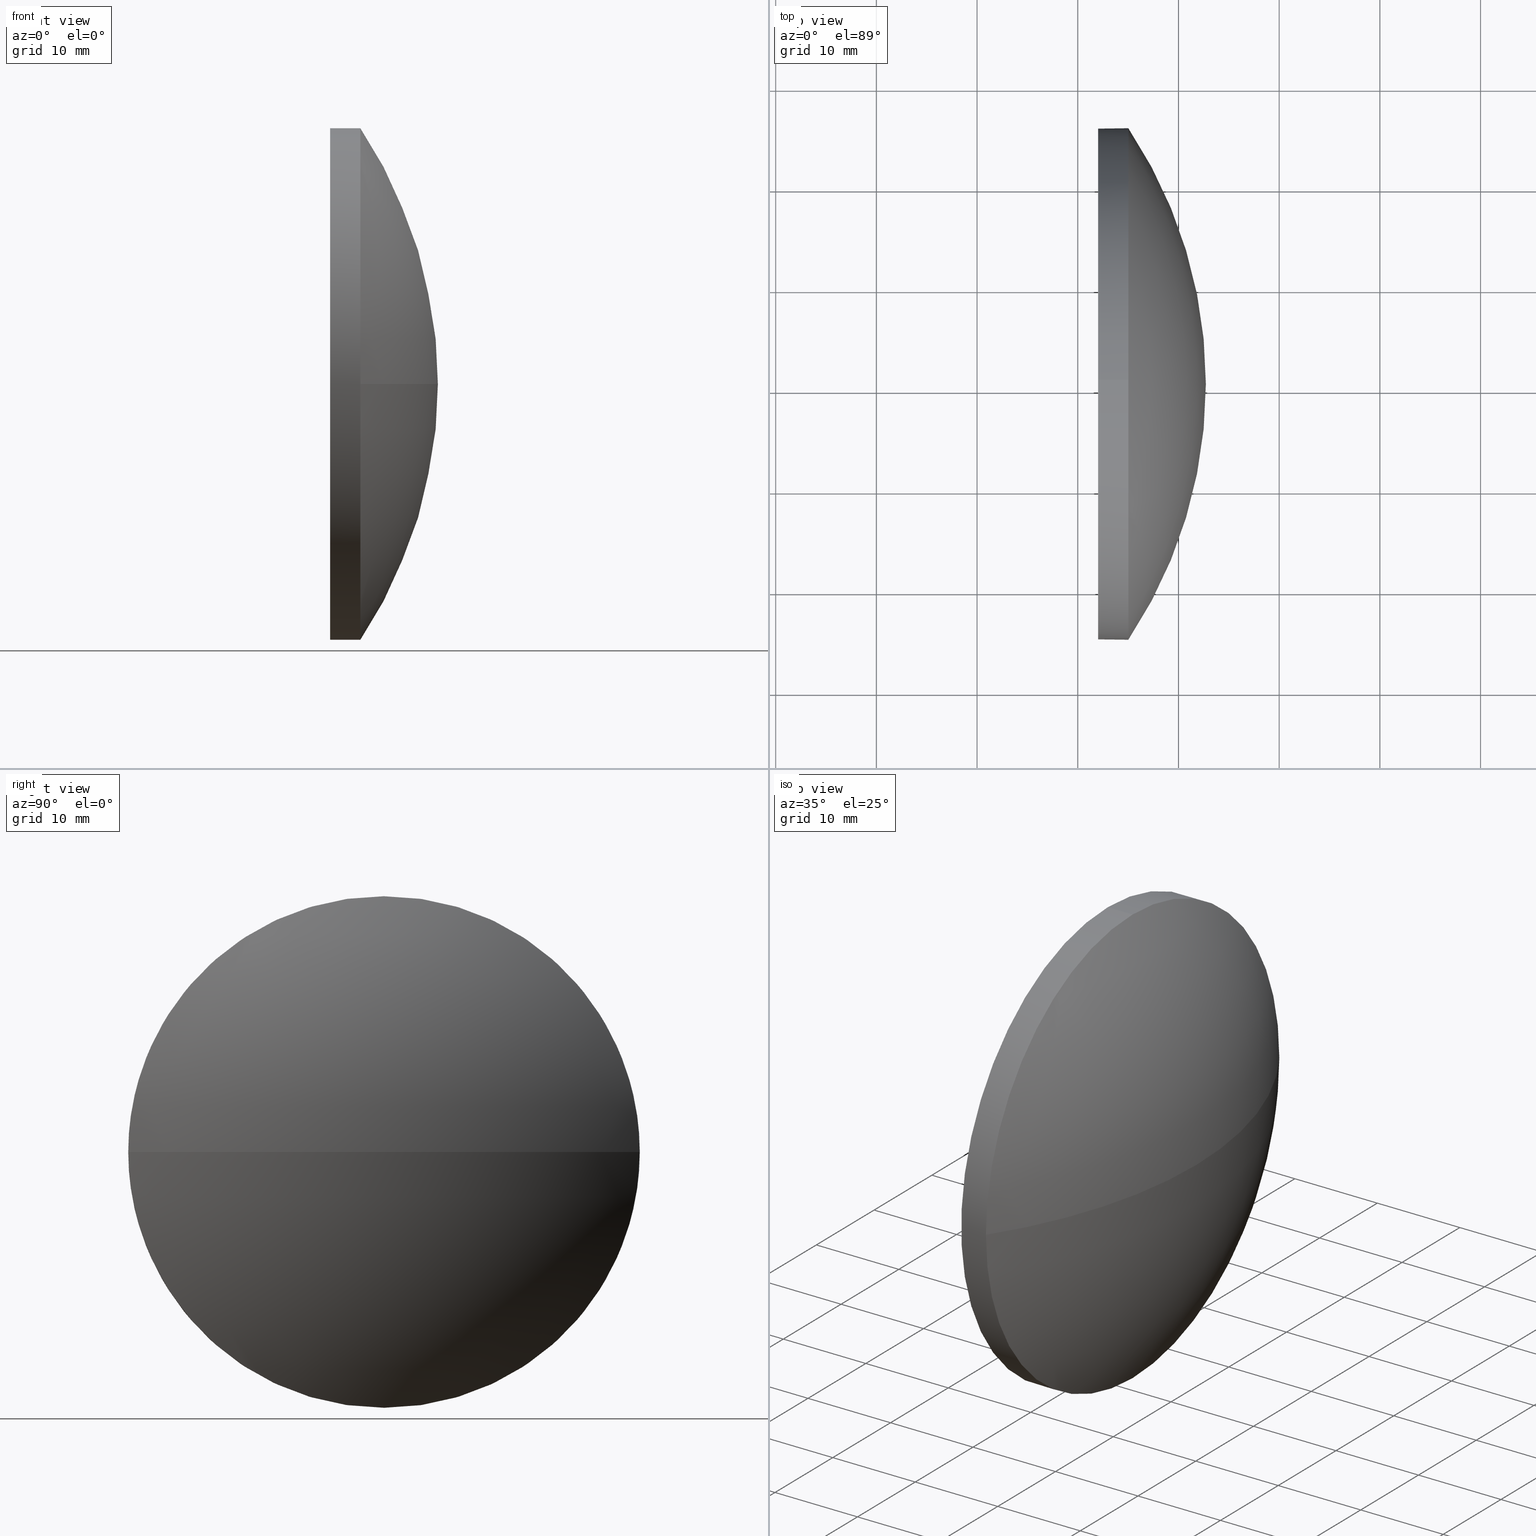
[diagram: canonical four-view strip — front | top / right | iso, engineering-drawing reading convention]
A machine part, canonical four-view strip (front | top / right | iso — engineering-drawing reading convention). The complete STEP part file that produces these views, byte-faithful:
ISO-10303-21;
HEADER;
FILE_DESCRIPTION (( 'STEP AP214' ),
    '1' );
FILE_NAME ('100386.STEP',
    '2019-06-05T01:37:19',
    ( '' ),
    ( '' ),
    'SwSTEP 2.0',
    'SolidWorks 2016',
    '' );
FILE_SCHEMA (( 'AUTOMOTIVE_DESIGN' ));
ENDSEC;

DATA;
#1 = MANIFOLD_SOLID_BREP ( '��ת1', #43 ) ;
#2 = ORIENTED_EDGE ( 'NONE', *, *, #173, .F. ) ;
#3 = MECHANICAL_DESIGN_GEOMETRIC_PRESENTATION_REPRESENTATION (  '', ( #126 ), #53 ) ;
#4 = PLANE ( 'NONE',  #135 ) ;
#5 = ORIENTED_EDGE ( 'NONE', *, *, #41, .T. ) ;
#6 = DIRECTION ( 'NONE',  ( 1.000000000000000000, 0.0000000000000000000, 0.0000000000000000000 ) ) ;
#7 =( LENGTH_UNIT ( ) NAMED_UNIT ( * ) SI_UNIT ( .MILLI., .METRE. ) );
#8 = DIRECTION ( 'NONE',  ( -0.0000000000000000000, 0.0000000000000000000, 1.000000000000000000 ) ) ;
#9 = ADVANCED_FACE ( 'NONE', ( #51 ), #4, .F. ) ;
#10 = DIRECTION ( 'NONE',  ( 0.0000000000000000000, 0.0000000000000000000, 1.000000000000000000 ) ) ;
#11 = DIRECTION ( 'NONE',  ( -1.000000000000000000, -0.0000000000000000000, -0.0000000000000000000 ) ) ;
#12 = PRESENTATION_LAYER_ASSIGNMENT (  '', '', ( #126 ) ) ;
#13 = SURFACE_STYLE_FILL_AREA ( #45 ) ;
#14 = AXIS2_PLACEMENT_3D ( 'NONE', #27, #86, #71 ) ;
#15 = CIRCLE ( 'NONE', #171, 25.40000000000000600 ) ;
#16 = AXIS2_PLACEMENT_3D ( 'NONE', #164, #129, #101 ) ;
#17 = AXIS2_PLACEMENT_3D ( 'NONE', #81, #123, #138 ) ;
#18 = SURFACE_STYLE_USAGE ( .BOTH. , #80 ) ;
#19 = CYLINDRICAL_SURFACE ( 'NONE', #31, 25.40000000000000600 ) ;
#20 = CARTESIAN_POINT ( 'NONE',  ( 220.3307464569769000, 130.4671098528243900, -25.40000000000000600 ) ) ;
#21 = DIRECTION ( 'NONE',  ( -0.0000000000000000000, 0.0000000000000000000, -1.000000000000000000 ) ) ;
#22 = ADVANCED_FACE ( 'NONE', ( #93 ), #74, .T. ) ;
#23 = EDGE_LOOP ( 'NONE', ( #122, #5, #141, #162, #117 ) ) ;
#24 = CARTESIAN_POINT ( 'NONE',  ( 235.0208200792423800, 130.4671098528243900, 0.0000000000000000000 ) ) ;
#25 = AXIS2_PLACEMENT_3D ( 'NONE', #142, #100, #10 ) ;
#26 = DIRECTION ( 'NONE',  ( -1.000000000000000000, -0.0000000000000000000, -0.0000000000000000000 ) ) ;
#27 = CARTESIAN_POINT ( 'NONE',  ( 220.3307464569769000, 130.4671098528243900, 0.0000000000000000000 ) ) ;
#28 =( GEOMETRIC_REPRESENTATION_CONTEXT ( 3 ) GLOBAL_UNCERTAINTY_ASSIGNED_CONTEXT ( ( #90 ) ) GLOBAL_UNIT_ASSIGNED_CONTEXT ( ( #143, #40, #30 ) ) REPRESENTATION_CONTEXT ( 'NONE', 'WORKASPACE' ) );
#29 = UNCERTAINTY_MEASURE_WITH_UNIT (LENGTH_MEASURE( 1.000000000000000100E-005 ), #7, 'distance_accuracy_value', 'NONE');
#30 =( NAMED_UNIT ( * ) SI_UNIT ( $, .STERADIAN. ) SOLID_ANGLE_UNIT ( ) );
#31 = AXIS2_PLACEMENT_3D ( 'NONE', #165, #26, #155 ) ;
#32 = CIRCLE ( 'NONE', #77, 25.40000000000000600 ) ;
#33 = FACE_OUTER_BOUND ( 'NONE', #131, .T. ) ;
#34 = STYLED_ITEM ( 'NONE', ( #137 ), #121 ) ;
#35 = VERTEX_POINT ( 'NONE', #79 ) ;
#36 = CARTESIAN_POINT ( 'NONE',  ( 232.0208200792423800, 130.4671098528243900, 0.0000000000000000000 ) ) ;
#37 =( GEOMETRIC_REPRESENTATION_CONTEXT ( 3 ) GLOBAL_UNCERTAINTY_ASSIGNED_CONTEXT ( ( #178 ) ) GLOBAL_UNIT_ASSIGNED_CONTEXT ( ( #92, #89, #103 ) ) REPRESENTATION_CONTEXT ( 'NONE', 'WORKASPACE' ) );
#38 = DIRECTION ( 'NONE',  ( -1.000000000000000000, -0.0000000000000000000, -0.0000000000000000000 ) ) ;
#39 = ORIENTED_EDGE ( 'NONE', *, *, #157, .F. ) ;
#40 =( NAMED_UNIT ( * ) PLANE_ANGLE_UNIT ( ) SI_UNIT ( $, .RADIAN. ) );
#41 = EDGE_CURVE ( 'NONE', #109, #185, #59, .T. ) ;
#42 = DIRECTION ( 'NONE',  ( 0.0000000000000000000, 0.0000000000000000000, 1.000000000000000000 ) ) ;
#43 = CLOSED_SHELL ( 'NONE', ( #152, #22, #99, #120, #9 ) ) ;
#44 = DIRECTION ( 'NONE',  ( 0.0000000000000000000, 0.0000000000000000000, 1.000000000000000000 ) ) ;
#45 = FILL_AREA_STYLE ('',( #154 ) ) ;
#46 = DIRECTION ( 'NONE',  ( 1.000000000000000000, 0.0000000000000000000, 0.0000000000000000000 ) ) ;
#47 = MECHANICAL_DESIGN_GEOMETRIC_PRESENTATION_REPRESENTATION (  '', ( #34 ), #37 ) ;
#48 = CIRCLE ( 'NONE', #160, 25.40000000000000600 ) ;
#49 = ORIENTED_EDGE ( 'NONE', *, *, #119, .T. ) ;
#50 = EDGE_CURVE ( 'NONE', #118, #78, #56, .T. ) ;
#51 = FACE_OUTER_BOUND ( 'NONE', #98, .T. ) ;
#52 = PRODUCT_DEFINITION_FORMATION_WITH_SPECIFIED_SOURCE ( '�κ�', '', #84, .NOT_KNOWN. ) ;
#53 =( GEOMETRIC_REPRESENTATION_CONTEXT ( 3 ) GLOBAL_UNCERTAINTY_ASSIGNED_CONTEXT ( ( #29 ) ) GLOBAL_UNIT_ASSIGNED_CONTEXT ( ( #7, #139, #176 ) ) REPRESENTATION_CONTEXT ( 'NONE', 'WORKASPACE' ) );
#54 = EDGE_LOOP ( 'NONE', ( #106, #88, #63, #2 ) ) ;
#55 = CARTESIAN_POINT ( 'NONE',  ( 196.9773135857358000, 130.4671098528243900, 0.0000000000000000000 ) ) ;
#56 = CIRCLE ( 'NONE', #17, 45.74350649350655800 ) ;
#57 = VERTEX_POINT ( 'NONE', #67 ) ;
#58 = AXIS2_PLACEMENT_3D ( 'NONE', #175, #21, #108 ) ;
#59 = LINE ( 'NONE', #20, #95 ) ;
#60 = CARTESIAN_POINT ( 'NONE',  ( 232.0208200792423800, 130.4671098528243900, 0.0000000000000000000 ) ) ;
#61 = ORIENTED_EDGE ( 'NONE', *, *, #157, .T. ) ;
#62 = APPLICATION_CONTEXT ( 'automotive_design' ) ;
#63 = ORIENTED_EDGE ( 'NONE', *, *, #166, .F. ) ;
#64 = AXIS2_PLACEMENT_3D ( 'NONE', #55, #110, #83 ) ;
#65 = LINE ( 'NONE', #102, #133 ) ;
#66 = DIRECTION ( 'NONE',  ( -1.000000000000000000, -0.0000000000000000000, -0.0000000000000000000 ) ) ;
#67 = CARTESIAN_POINT ( 'NONE',  ( 232.0208200792423800, 130.4671098528243900, 25.40000000000000600 ) ) ;
#68 = CARTESIAN_POINT ( 'NONE',  ( 235.0208200792423800, 105.0671098528243900, -3.110602869834276900E-015 ) ) ;
#69 = ORIENTED_EDGE ( 'NONE', *, *, #166, .T. ) ;
#70 = AXIS2_PLACEMENT_3D ( 'NONE', #144, #44, #46 ) ;
#71 = DIRECTION ( 'NONE',  ( 0.0000000000000000000, 0.0000000000000000000, 1.000000000000000000 ) ) ;
#72 = CIRCLE ( 'NONE', #151, 45.74350649350655800 ) ;
#73 = APPLICATION_CONTEXT ( 'automotive_design' ) ;
#74 = SPHERICAL_SURFACE ( 'NONE', #58, 45.74350649350655800 ) ;
#75 = PRESENTATION_STYLE_ASSIGNMENT (( #18 ) ) ;
#76 = PRODUCT_DEFINITION_CONTEXT ( 'detailed design', #62, 'design' ) ;
#77 = AXIS2_PLACEMENT_3D ( 'NONE', #24, #125, #42 ) ;
#78 = VERTEX_POINT ( 'NONE', #68 ) ;
#79 = CARTESIAN_POINT ( 'NONE',  ( 235.0208200792423800, 130.4671098528243900, 25.40000000000000600 ) ) ;
#80 = SURFACE_SIDE_STYLE ('',( #91 ) ) ;
#81 = CARTESIAN_POINT ( 'NONE',  ( 196.9773135857358000, 130.4671098528243900, 0.0000000000000000000 ) ) ;
#82 = ORIENTED_EDGE ( 'NONE', *, *, #134, .T. ) ;
#83 = DIRECTION ( 'NONE',  ( 0.0000000000000000000, 1.000000000000000000, 0.0000000000000000000 ) ) ;
#84 = PRODUCT ( '100386', '100386', '', ( #181 ) ) ;
#85 = CARTESIAN_POINT ( 'NONE',  ( 232.0208200792423800, 130.4671098528243900, 0.0000000000000000000 ) ) ;
#86 = DIRECTION ( 'NONE',  ( -1.000000000000000000, -0.0000000000000000000, -0.0000000000000000000 ) ) ;
#87 = COLOUR_RGB ( '',1.000000000000000000, 1.000000000000000000, 1.000000000000000000 ) ;
#88 = ORIENTED_EDGE ( 'NONE', *, *, #50, .T. ) ;
#89 =( NAMED_UNIT ( * ) PLANE_ANGLE_UNIT ( ) SI_UNIT ( $, .RADIAN. ) );
#90 = UNCERTAINTY_MEASURE_WITH_UNIT (LENGTH_MEASURE( 1.000000000000000100E-005 ), #143, 'distance_accuracy_value', 'NONE');
#91 = SURFACE_STYLE_FILL_AREA ( #149 ) ;
#92 =( LENGTH_UNIT ( ) NAMED_UNIT ( * ) SI_UNIT ( .MILLI., .METRE. ) );
#93 = FACE_OUTER_BOUND ( 'NONE', #54, .T. ) ;
#94 = CYLINDRICAL_SURFACE ( 'NONE', #14, 25.40000000000000600 ) ;
#95 = VECTOR ( 'NONE', #66, 1000.000000000000000 ) ;
#96 = FILL_AREA_STYLE_COLOUR ( '', #159 ) ;
#97 = CARTESIAN_POINT ( 'NONE',  ( 242.7208200792423700, 130.4671098528243900, 0.0000000000000000000 ) ) ;
#98 = EDGE_LOOP ( 'NONE', ( #49, #61 ) ) ;
#99 = ADVANCED_FACE ( 'NONE', ( #33 ), #116, .T. ) ;
#100 = DIRECTION ( 'NONE',  ( -1.000000000000000000, -0.0000000000000000000, -0.0000000000000000000 ) ) ;
#101 = DIRECTION ( 'NONE',  ( 0.0000000000000000000, 0.0000000000000000000, 1.000000000000000000 ) ) ;
#102 = CARTESIAN_POINT ( 'NONE',  ( 220.3307464569769000, 130.4671098528243900, 25.40000000000000600 ) ) ;
#103 =( NAMED_UNIT ( * ) SI_UNIT ( $, .STERADIAN. ) SOLID_ANGLE_UNIT ( ) );
#104 = APPLICATION_PROTOCOL_DEFINITION ( 'draft international standard', 'automotive_design', 1998, #62 ) ;
#105 = CIRCLE ( 'NONE', #146, 25.40000000000000600 ) ;
#106 = ORIENTED_EDGE ( 'NONE', *, *, #114, .F. ) ;
#107 = DIRECTION ( 'NONE',  ( 0.0000000000000000000, 0.0000000000000000000, -1.000000000000000000 ) ) ;
#108 = DIRECTION ( 'NONE',  ( 0.0000000000000000000, 1.000000000000000000, 0.0000000000000000000 ) ) ;
#109 = VERTEX_POINT ( 'NONE', #163 ) ;
#110 = DIRECTION ( 'NONE',  ( -0.0000000000000000000, 0.0000000000000000000, -1.000000000000000000 ) ) ;
#111 = CARTESIAN_POINT ( 'NONE',  ( 196.9773135857358000, 130.4671098528243900, 0.0000000000000000000 ) ) ;
#112 = ORIENTED_EDGE ( 'NONE', *, *, #114, .T. ) ;
#113 = CARTESIAN_POINT ( 'NONE',  ( 232.0208200792423800, 130.4671098528243900, -25.40000000000000600 ) ) ;
#114 = EDGE_CURVE ( 'NONE', #118, #148, #72, .T. ) ;
#115 = SURFACE_SIDE_STYLE ('',( #13 ) ) ;
#116 = SPHERICAL_SURFACE ( 'NONE', #64, 45.74350649350655800 ) ;
#117 = ORIENTED_EDGE ( 'NONE', *, *, #124, .T. ) ;
#118 = VERTEX_POINT ( 'NONE', #97 ) ;
#119 = EDGE_CURVE ( 'NONE', #57, #185, #48, .T. ) ;
#120 = ADVANCED_FACE ( 'NONE', ( #140 ), #94, .T. ) ;
#121 = ADVANCED_BREP_SHAPE_REPRESENTATION ( '100386', ( #1, #70 ), #28 ) ;
#122 = ORIENTED_EDGE ( 'NONE', *, *, #173, .T. ) ;
#123 = DIRECTION ( 'NONE',  ( 0.0000000000000000000, 1.224646799147353200E-016, -1.000000000000000000 ) ) ;
#124 = EDGE_CURVE ( 'NONE', #35, #148, #169, .T. ) ;
#125 = DIRECTION ( 'NONE',  ( -1.000000000000000000, -0.0000000000000000000, -0.0000000000000000000 ) ) ;
#126 = STYLED_ITEM ( 'NONE', ( #75 ), #1 ) ;
#127 = DIRECTION ( 'NONE',  ( 1.000000000000000000, 0.0000000000000000000, 0.0000000000000000000 ) ) ;
#128 = DIRECTION ( 'NONE',  ( -1.000000000000000000, -0.0000000000000000000, -0.0000000000000000000 ) ) ;
#129 = DIRECTION ( 'NONE',  ( -1.000000000000000000, -0.0000000000000000000, -0.0000000000000000000 ) ) ;
#130 = PRODUCT_RELATED_PRODUCT_CATEGORY ( 'part', '', ( #84 ) ) ;
#131 = EDGE_LOOP ( 'NONE', ( #156, #112, #150, #184 ) ) ;
#132 = SURFACE_STYLE_USAGE ( .BOTH. , #115 ) ;
#133 = VECTOR ( 'NONE', #11, 1000.000000000000000 ) ;
#134 = EDGE_CURVE ( 'NONE', #35, #57, #65, .T. ) ;
#135 = AXIS2_PLACEMENT_3D ( 'NONE', #36, #6, #107 ) ;
#136 = PRODUCT_DEFINITION_SHAPE ( 'NONE', 'NONE',  #183 ) ;
#137 = PRESENTATION_STYLE_ASSIGNMENT (( #132 ) ) ;
#138 = DIRECTION ( 'NONE',  ( 0.0000000000000000000, 1.000000000000000000, 1.224646799147353200E-016 ) ) ;
#139 =( NAMED_UNIT ( * ) PLANE_ANGLE_UNIT ( ) SI_UNIT ( $, .RADIAN. ) );
#140 = FACE_OUTER_BOUND ( 'NONE', #172, .T. ) ;
#141 = ORIENTED_EDGE ( 'NONE', *, *, #119, .F. ) ;
#142 = CARTESIAN_POINT ( 'NONE',  ( 235.0208200792423800, 130.4671098528243900, 0.0000000000000000000 ) ) ;
#143 =( LENGTH_UNIT ( ) NAMED_UNIT ( * ) SI_UNIT ( .MILLI., .METRE. ) );
#144 = CARTESIAN_POINT ( 'NONE',  ( 0.0000000000000000000, 0.0000000000000000000, 0.0000000000000000000 ) ) ;
#145 = FACE_OUTER_BOUND ( 'NONE', #23, .T. ) ;
#146 = AXIS2_PLACEMENT_3D ( 'NONE', #85, #128, #180 ) ;
#147 = APPLICATION_PROTOCOL_DEFINITION ( 'draft international standard', 'automotive_design', 1998, #73 ) ;
#148 = VERTEX_POINT ( 'NONE', #168 ) ;
#149 = FILL_AREA_STYLE ('',( #96 ) ) ;
#150 = ORIENTED_EDGE ( 'NONE', *, *, #124, .F. ) ;
#151 = AXIS2_PLACEMENT_3D ( 'NONE', #111, #8, #127 ) ;
#152 = ADVANCED_FACE ( 'NONE', ( #145 ), #19, .T. ) ;
#153 = CARTESIAN_POINT ( 'NONE',  ( 235.0208200792423800, 130.4671098528243900, 0.0000000000000000000 ) ) ;
#154 = FILL_AREA_STYLE_COLOUR ( '', #87 ) ;
#155 = DIRECTION ( 'NONE',  ( 0.0000000000000000000, 0.0000000000000000000, 1.000000000000000000 ) ) ;
#156 = ORIENTED_EDGE ( 'NONE', *, *, #50, .F. ) ;
#157 = EDGE_CURVE ( 'NONE', #185, #57, #105, .T. ) ;
#158 = PRESENTATION_LAYER_ASSIGNMENT (  '', '', ( #34 ) ) ;
#159 = COLOUR_RGB ( '',1.000000000000000000, 1.000000000000000000, 1.000000000000000000 ) ;
#160 = AXIS2_PLACEMENT_3D ( 'NONE', #60, #38, #179 ) ;
#161 = SHAPE_DEFINITION_REPRESENTATION ( #136, #121 ) ;
#162 = ORIENTED_EDGE ( 'NONE', *, *, #134, .F. ) ;
#163 = CARTESIAN_POINT ( 'NONE',  ( 235.0208200792423800, 130.4671098528243900, -25.40000000000000600 ) ) ;
#164 = CARTESIAN_POINT ( 'NONE',  ( 235.0208200792423800, 130.4671098528243900, 0.0000000000000000000 ) ) ;
#165 = CARTESIAN_POINT ( 'NONE',  ( 220.3307464569769000, 130.4671098528243900, 0.0000000000000000000 ) ) ;
#166 = EDGE_CURVE ( 'NONE', #109, #78, #32, .T. ) ;
#167 = DIRECTION ( 'NONE',  ( 0.0000000000000000000, 0.0000000000000000000, 1.000000000000000000 ) ) ;
#168 = CARTESIAN_POINT ( 'NONE',  ( 235.0208200792423800, 155.8671098528244000, 0.0000000000000000000 ) ) ;
#169 = CIRCLE ( 'NONE', #16, 25.40000000000000600 ) ;
#170 = ORIENTED_EDGE ( 'NONE', *, *, #186, .T. ) ;
#171 = AXIS2_PLACEMENT_3D ( 'NONE', #153, #177, #167 ) ;
#172 = EDGE_LOOP ( 'NONE', ( #182, #69, #170, #82, #39 ) ) ;
#173 = EDGE_CURVE ( 'NONE', #148, #109, #15, .T. ) ;
#174 = CIRCLE ( 'NONE', #25, 25.40000000000000600 ) ;
#175 = CARTESIAN_POINT ( 'NONE',  ( 196.9773135857358000, 130.4671098528243900, 0.0000000000000000000 ) ) ;
#176 =( NAMED_UNIT ( * ) SI_UNIT ( $, .STERADIAN. ) SOLID_ANGLE_UNIT ( ) );
#177 = DIRECTION ( 'NONE',  ( -1.000000000000000000, -0.0000000000000000000, -0.0000000000000000000 ) ) ;
#178 = UNCERTAINTY_MEASURE_WITH_UNIT (LENGTH_MEASURE( 1.000000000000000100E-005 ), #92, 'distance_accuracy_value', 'NONE');
#179 = DIRECTION ( 'NONE',  ( 0.0000000000000000000, 0.0000000000000000000, 1.000000000000000000 ) ) ;
#180 = DIRECTION ( 'NONE',  ( 0.0000000000000000000, 0.0000000000000000000, 1.000000000000000000 ) ) ;
#181 = PRODUCT_CONTEXT ( 'NONE', #73, 'mechanical' ) ;
#182 = ORIENTED_EDGE ( 'NONE', *, *, #41, .F. ) ;
#183 = PRODUCT_DEFINITION ( 'δ֪', '', #52, #76 ) ;
#184 = ORIENTED_EDGE ( 'NONE', *, *, #186, .F. ) ;
#185 = VERTEX_POINT ( 'NONE', #113 ) ;
#186 = EDGE_CURVE ( 'NONE', #78, #35, #174, .T. ) ;
ENDSEC;
END-ISO-10303-21;
